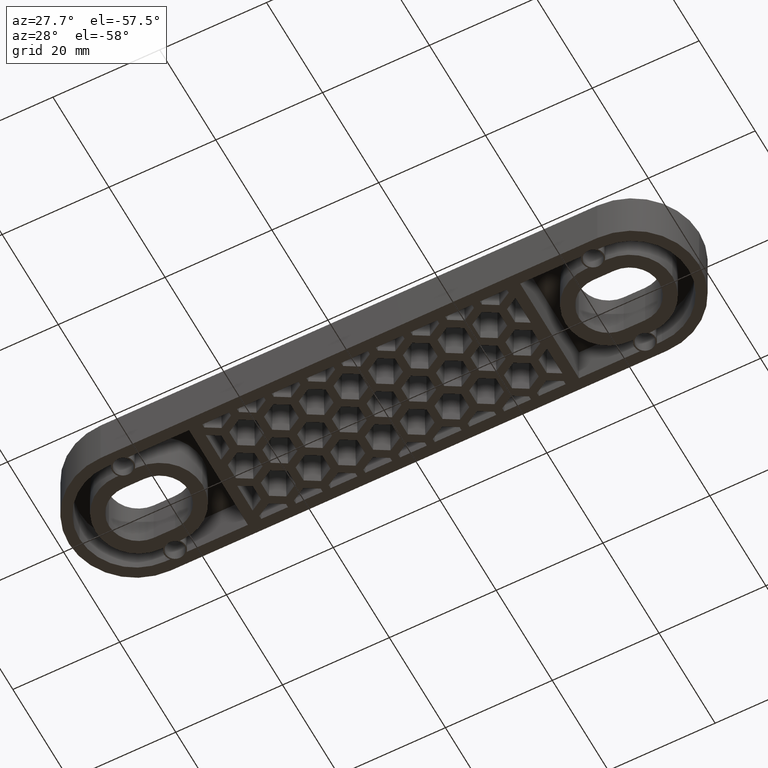
[diagram: clean part render]
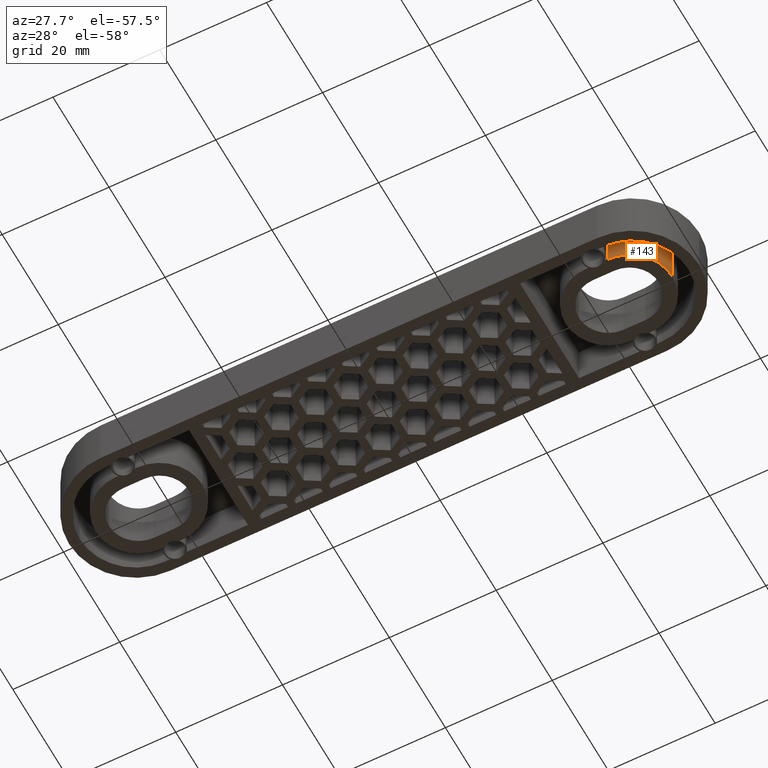
[diagram: same view with one face highlighted and labeled with its STEP entity id]
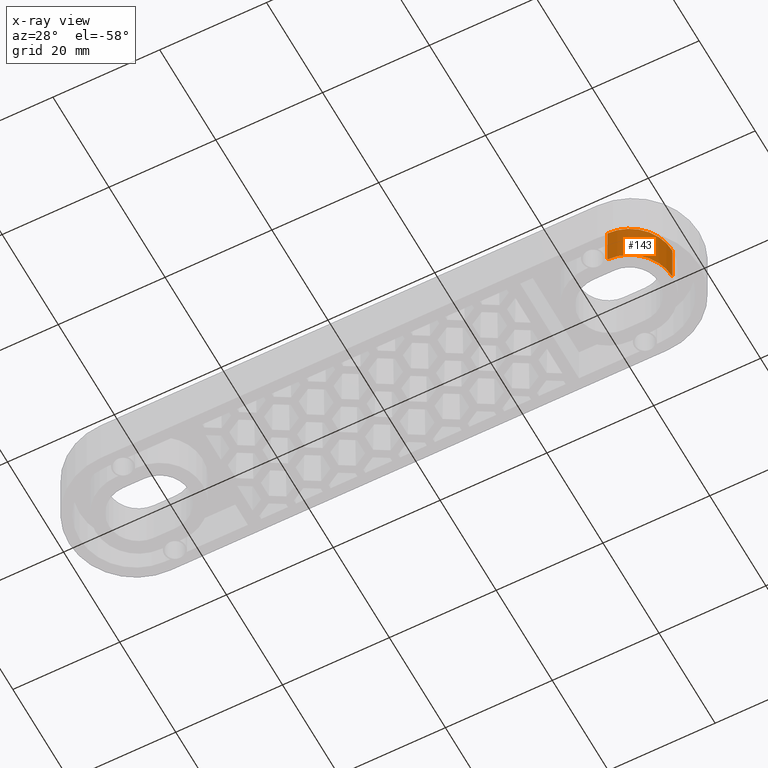
[diagram: x-ray of the same camera — body ghosted, the highlighted face saturated]
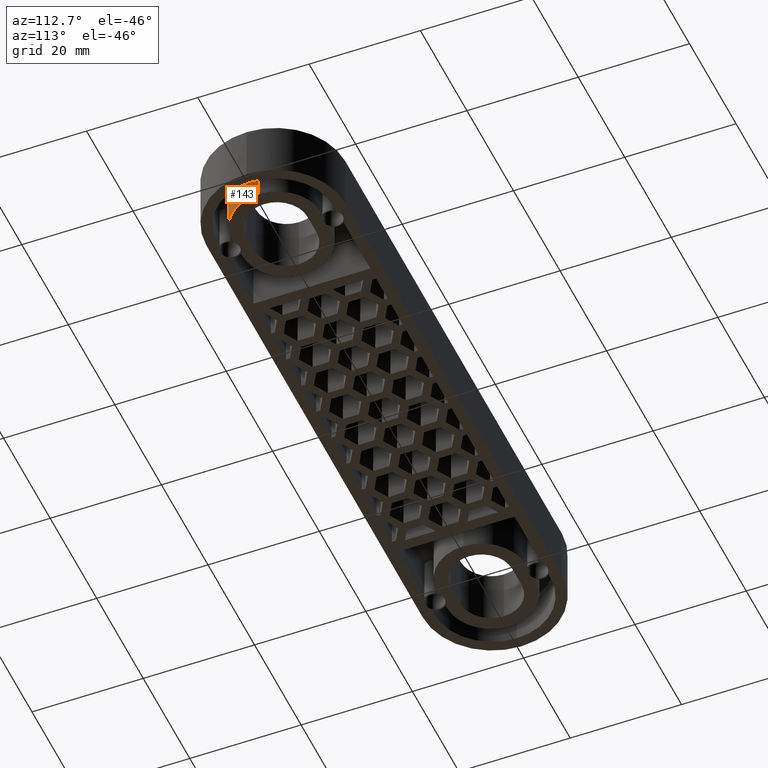
[diagram: same view with one face highlighted and labeled with its STEP entity id]
A machine part, auxiliary view. The second image highlights one B-rep face of the part: STEP entity #143.
The next image is the same camera in x-ray: the body ghosted, the highlighted face saturated — about 0% of this face is hidden behind the body in this view.
A second angle (auxiliary view) of the same face is appended — the face is thin or edge-on in the first view.
In plain terms, the highlighted cylindrical surface (partial cylindrical patch) has radius 8 mm, axis along (0, -0, -1).
Its self-contained STEP definition (entity closure, byte-faithful):
#143 = ADVANCED_FACE( '', ( #692 ), #693, .T. );
#692 = FACE_OUTER_BOUND( '', #1584, .T. );
#693 = CYLINDRICAL_SURFACE( '', #1585, 8.00000000000000 );
#1584 = EDGE_LOOP( '', ( #3107, #3108, #3109, #3110 ) );
#1585 = AXIS2_PLACEMENT_3D( '', #3111, #3112, #3113 );
#3107 = ORIENTED_EDGE( '', *, *, #5670, .T. );
#3108 = ORIENTED_EDGE( '', *, *, #6042, .T. );
#3109 = ORIENTED_EDGE( '', *, *, #5644, .F. );
#3110 = ORIENTED_EDGE( '', *, *, #6036, .F. );
#3111 = CARTESIAN_POINT( '', ( 46.0000000000000, 1.77635622709177E-015, -1.00000865782546E-005 ) );
#3112 = DIRECTION( '', ( 5.47382212626882E-048, -6.12303176911189E-017, -1.00000000000000 ) );
#3113 = DIRECTION( '', ( 1.00000000000000, 7.04487466626769E-016, -4.31359913909685E-032 ) );
#5644 = EDGE_CURVE( '', #6749, #6751, #6752, .T. );
#5670 = EDGE_CURVE( '', #6802, #6800, #6803, .T. );
#6036 = EDGE_CURVE( '', #6802, #6749, #7492, .T. );
#6042 = EDGE_CURVE( '', #6800, #6751, #7498, .T. );
#6749 = VERTEX_POINT( '', #8523 );
#6751 = VERTEX_POINT( '', #8526 );
#6752 = CIRCLE( '', #8527, 8.00000000000000 );
#6800 = VERTEX_POINT( '', #8585 );
#6802 = VERTEX_POINT( '', #8587 );
#6803 = CIRCLE( '', #8588, 8.00000000000000 );
#7492 = LINE( '', #9616, #9617 );
#7498 = LINE( '', #9628, #9629 );
#8523 = CARTESIAN_POINT( '', ( 46.0000000000000, -8.00000000000000, 8.00000799998492 ) );
#8526 = CARTESIAN_POINT( '', ( 54.0000000000000, 8.29219554544525E-015, 8.00000799998492 ) );
#8527 = AXIS2_PLACEMENT_3D( '', #11134, #11135, #11136 );
#8585 = CARTESIAN_POINT( '', ( 54.0000000000000, 8.45384959952123E-015, 1.38777878078145E-014 ) );
#8587 = CARTESIAN_POINT( '', ( 46.0000000000000, -8.00000000000000, 1.43676303493434E-014 ) );
#8588 = AXIS2_PLACEMENT_3D( '', #11192, #11193, #11194 );
#9616 = CARTESIAN_POINT( '', ( 46.0000000000000, -8.00000000000000, -1.00000865777647E-005 ) );
#9617 = VECTOR( '', #11612, 1000.00000000000 );
#9628 = CARTESIAN_POINT( '', ( 54.0000000000000, 7.80235190176621E-015, -1.00000865782546E-005 ) );
#9629 = VECTOR( '', #11618, 1000.00000000000 );
#11134 = CARTESIAN_POINT( '', ( 46.0000000000000, 2.26619987077082E-015, 8.00000799998492 ) );
#11135 = DIRECTION( '', ( 0.000000000000000, 6.12303176911189E-017, 1.00000000000000 ) );
#11136 = DIRECTION( '', ( 1.62874271361635E-016, 1.00000000000000, -6.12303176911189E-017 ) );
#11192 = CARTESIAN_POINT( '', ( 46.0000000000000, 1.77635683940025E-015, 1.38777878078145E-014 ) );
#11193 = DIRECTION( '', ( 0.000000000000000, 6.12303176911189E-017, 1.00000000000000 ) );
#11194 = DIRECTION( '', ( 0.000000000000000, -1.00000000000000, 6.12303176911189E-017 ) );
#11612 = DIRECTION( '', ( 0.000000000000000, 6.12303176911189E-017, 1.00000000000000 ) );
#11618 = DIRECTION( '', ( 0.000000000000000, 6.12303176911189E-017, 1.00000000000000 ) );